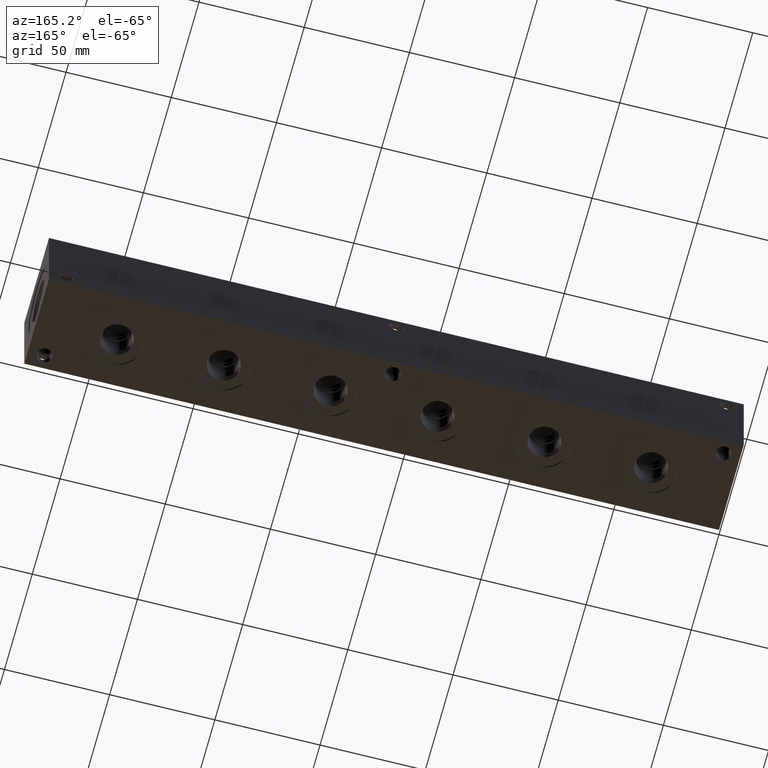
[diagram: clean part render]
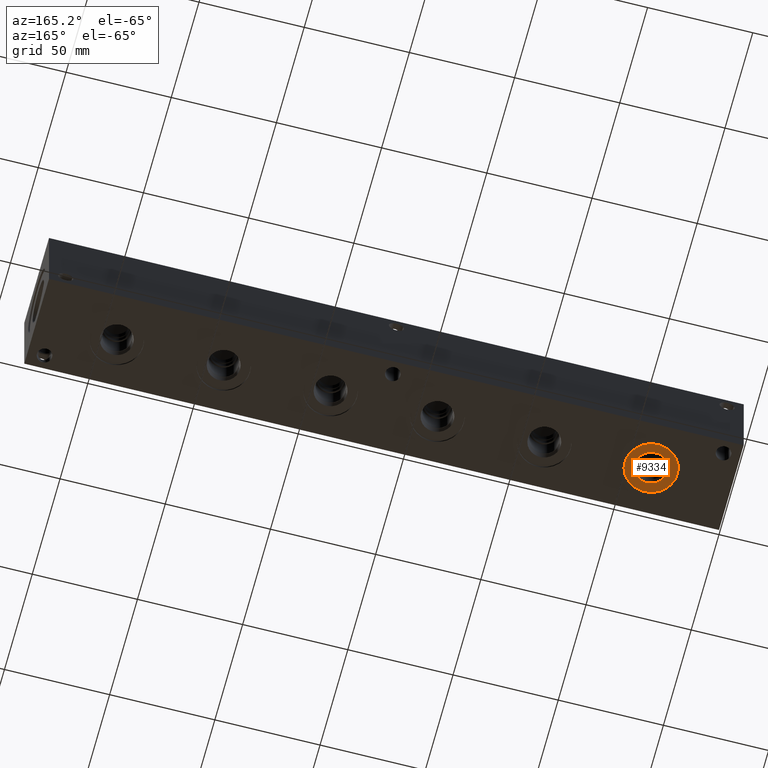
[diagram: same view with one face highlighted and labeled with its STEP entity id]
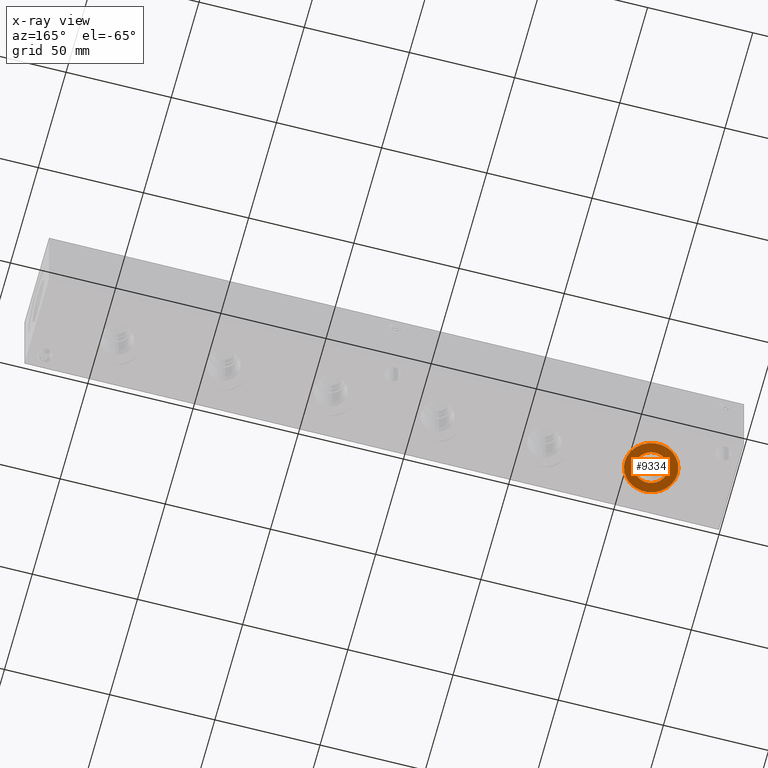
[diagram: x-ray of the same camera — body ghosted, the highlighted face saturated]
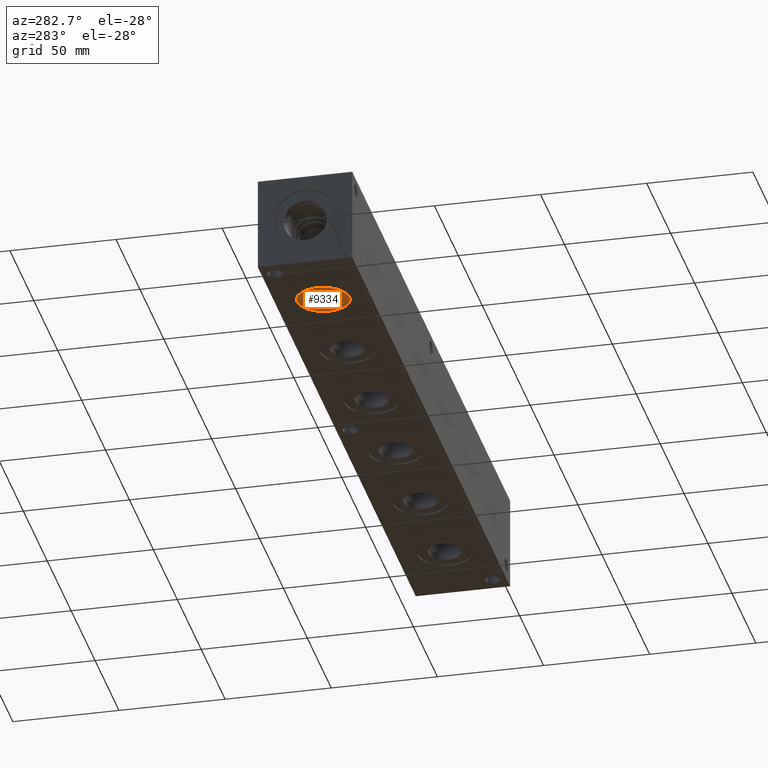
[diagram: same view with one face highlighted and labeled with its STEP entity id]
A machine part, auxiliary view. The second image highlights one B-rep face of the part: STEP entity #9334.
The next image is the same camera in x-ray: the body ghosted, the highlighted face saturated — about 0% of this face is hidden behind the body in this view.
A second angle (auxiliary view) of the same face is appended — the face is thin or edge-on in the first view.
In plain terms, the highlighted planar face has unit normal (0, 0, 1).
Its self-contained STEP definition (entity closure, byte-faithful):
#294=CIRCLE('',#9852,12.5095);
#295=CIRCLE('',#9853,12.5095);
#296=CIRCLE('',#9855,7.7978);
#297=CIRCLE('',#9856,7.7978);
#505=FACE_BOUND('',#1699,.T.);
#752=PLANE('',#9854);
#1157=FACE_OUTER_BOUND('',#1698,.T.);
#1698=EDGE_LOOP('',(#7943,#7944));
#1699=EDGE_LOOP('',(#7945,#7946));
#4368=VERTEX_POINT('',#15971);
#4369=VERTEX_POINT('',#15973);
#4370=VERTEX_POINT('',#15977);
#4371=VERTEX_POINT('',#15978);
#5600=EDGE_CURVE('',#4368,#4369,#294,.T.);
#5601=EDGE_CURVE('',#4369,#4368,#295,.T.);
#5602=EDGE_CURVE('',#4370,#4371,#296,.T.);
#5603=EDGE_CURVE('',#4371,#4370,#297,.T.);
#7943=ORIENTED_EDGE('',*,*,#5601,.F.);
#7944=ORIENTED_EDGE('',*,*,#5600,.F.);
#7945=ORIENTED_EDGE('',*,*,#5602,.T.);
#7946=ORIENTED_EDGE('',*,*,#5603,.T.);
#9334=ADVANCED_FACE('',(#1157,#505),#752,.F.);
#9852=AXIS2_PLACEMENT_3D('',#15974,#11618,#11619);
#9853=AXIS2_PLACEMENT_3D('',#15975,#11620,#11621);
#9854=AXIS2_PLACEMENT_3D('',#15976,#11622,#11623);
#9855=AXIS2_PLACEMENT_3D('',#15979,#11624,#11625);
#9856=AXIS2_PLACEMENT_3D('',#15980,#11626,#11627);
#11618=DIRECTION('center_axis',(0.,0.,1.));
#11619=DIRECTION('ref_axis',(1.,0.,0.));
#11620=DIRECTION('center_axis',(0.,0.,1.));
#11621=DIRECTION('ref_axis',(1.,0.,0.));
#11622=DIRECTION('center_axis',(0.,0.,1.));
#11623=DIRECTION('ref_axis',(1.,0.,0.));
#11624=DIRECTION('center_axis',(0.,0.,1.));
#11625=DIRECTION('ref_axis',(1.,0.,0.));
#11626=DIRECTION('center_axis',(0.,0.,1.));
#11627=DIRECTION('ref_axis',(1.,0.,0.));
#15971=CARTESIAN_POINT('',(25.5905,22.225,0.7874));
#15973=CARTESIAN_POINT('',(50.6095,22.225,0.7874));
#15974=CARTESIAN_POINT('Origin',(38.1,22.225,0.7874));
#15975=CARTESIAN_POINT('Origin',(38.1,22.225,0.7874));
#15976=CARTESIAN_POINT('Origin',(45.8978,22.225,0.7874));
#15977=CARTESIAN_POINT('',(45.8978,22.225,0.7874));
#15978=CARTESIAN_POINT('',(30.3022,22.225,0.787399999999999));
#15979=CARTESIAN_POINT('Origin',(38.1,22.225,0.7874));
#15980=CARTESIAN_POINT('Origin',(38.1,22.225,0.7874));